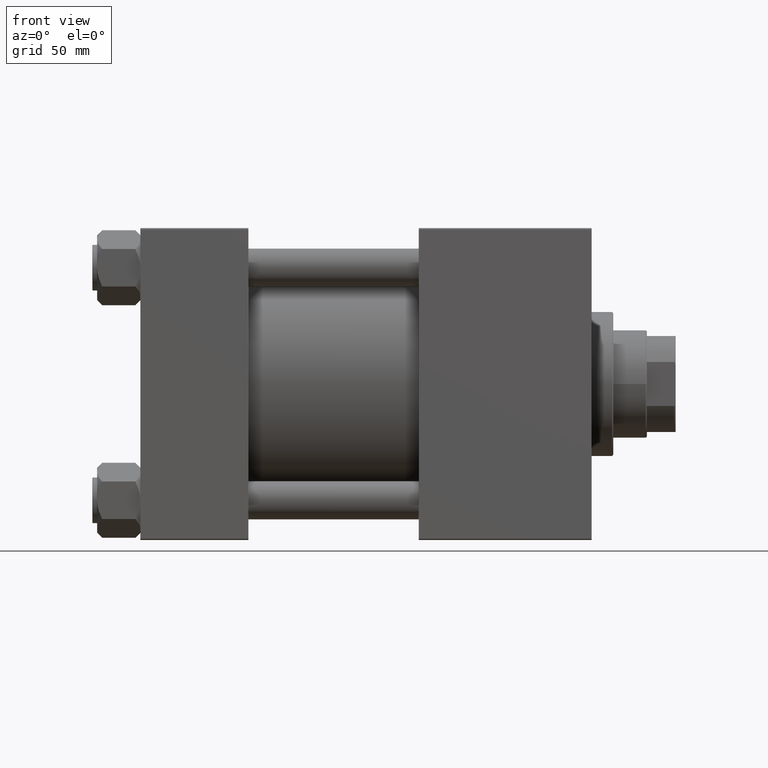
[diagram: clean part render]
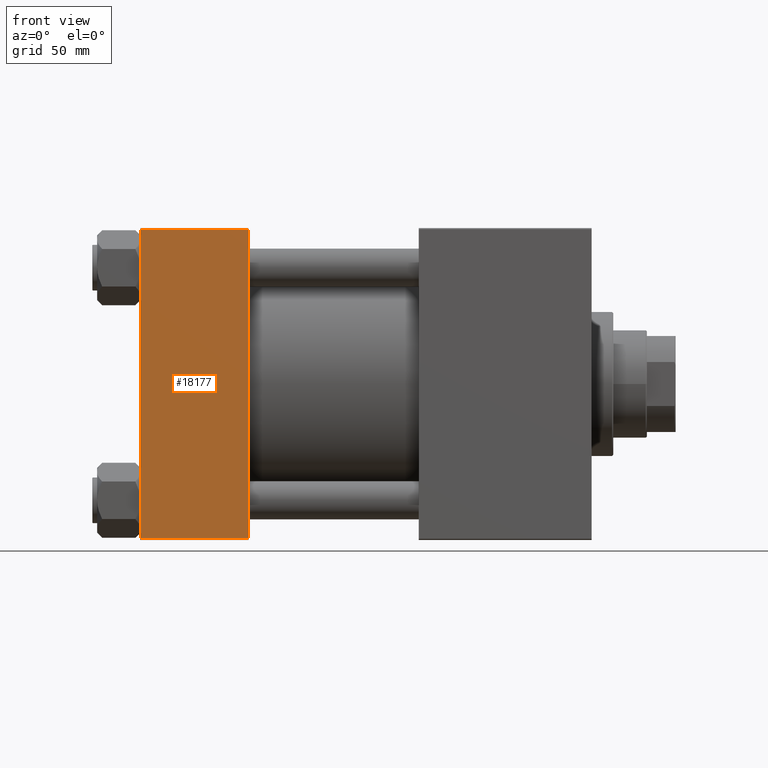
[diagram: same view with one face highlighted and labeled with its STEP entity id]
A machine part, front view. The second image highlights one B-rep face of the part: STEP entity #18177.
In plain terms, the highlighted planar face has unit normal (0, 1, 0).
Its self-contained STEP definition (entity closure, byte-faithful):
#965 = LINE ( 'NONE', #16630, #46344 ) ;
#1500 = EDGE_LOOP ( 'NONE', ( #11867, #2541, #40585, #39055 ) ) ;
#2541 = ORIENTED_EDGE ( 'NONE', *, *, #37701, .T. ) ;
#5030 = LINE ( 'NONE', #44315, #43944 ) ;
#5978 = CARTESIAN_POINT ( 'NONE',  ( 0.000000000000000000, -65.00000000000000000, 65.00000000000000000 ) ) ;
#8676 = DIRECTION ( 'NONE',  ( 1.000000000000000000, 0.000000000000000000, 0.000000000000000000 ) ) ;
#8949 = DIRECTION ( 'NONE',  ( 0.000000000000000000, 0.000000000000000000, -1.000000000000000000 ) ) ;
#10778 = DIRECTION ( 'NONE',  ( 0.000000000000000000, -0.000000000000000000, 1.000000000000000000 ) ) ;
#11031 = DIRECTION ( 'NONE',  ( -0.000000000000000000, 1.000000000000000000, 0.000000000000000000 ) ) ;
#11867 = ORIENTED_EDGE ( 'NONE', *, *, #40208, .T. ) ;
#12018 = CARTESIAN_POINT ( 'NONE',  ( 0.000000000000000000, -65.00000000000000000, 64.50000000000000000 ) ) ;
#12808 = CARTESIAN_POINT ( 'NONE',  ( 45.00000000000000000, -65.00000000000000000, 65.00000000000000000 ) ) ;
#13701 = LINE ( 'NONE', #5978, #42313 ) ;
#16630 = CARTESIAN_POINT ( 'NONE',  ( 45.00000000000000000, -65.00000000000000000, -64.49999999999991473 ) ) ;
#18177 = ADVANCED_FACE ( 'NONE', ( #33884 ), #23096, .F. ) ;
#18515 = EDGE_CURVE ( 'NONE', #19273, #18962, #21771, .T. ) ;
#18962 = VERTEX_POINT ( 'NONE', #36863 ) ;
#19273 = VERTEX_POINT ( 'NONE', #46941 ) ;
#20190 = DIRECTION ( 'NONE',  ( -1.000000000000000000, 0.000000000000000000, 0.000000000000000000 ) ) ;
#21661 = DIRECTION ( 'NONE',  ( 0.000000000000000000, 0.000000000000000000, -1.000000000000000000 ) ) ;
#21771 = LINE ( 'NONE', #12808, #23007 ) ;
#23007 = VECTOR ( 'NONE', #8949, 1000.000000000000000 ) ;
#23096 = PLANE ( 'NONE',  #31178 ) ;
#31178 = AXIS2_PLACEMENT_3D ( 'NONE', #45947, #11031, #10778 ) ;
#32851 = CARTESIAN_POINT ( 'NONE',  ( 0.000000000000000000, -65.00000000000000000, -64.49999999999991473 ) ) ;
#33884 = FACE_OUTER_BOUND ( 'NONE', #1500, .T. ) ;
#36863 = CARTESIAN_POINT ( 'NONE',  ( 45.00000000000000000, -65.00000000000000000, -64.49999999999991473 ) ) ;
#37701 = EDGE_CURVE ( 'NONE', #42085, #18962, #965, .T. ) ;
#38295 = EDGE_CURVE ( 'NONE', #19273, #43919, #5030, .T. ) ;
#39055 = ORIENTED_EDGE ( 'NONE', *, *, #38295, .T. ) ;
#40208 = EDGE_CURVE ( 'NONE', #43919, #42085, #13701, .T. ) ;
#40585 = ORIENTED_EDGE ( 'NONE', *, *, #18515, .F. ) ;
#42085 = VERTEX_POINT ( 'NONE', #32851 ) ;
#42313 = VECTOR ( 'NONE', #21661, 1000.000000000000000 ) ;
#43919 = VERTEX_POINT ( 'NONE', #12018 ) ;
#43944 = VECTOR ( 'NONE', #20190, 1000.000000000000000 ) ;
#44315 = CARTESIAN_POINT ( 'NONE',  ( 45.00000000000000000, -65.00000000000000000, 64.50000000000000000 ) ) ;
#45947 = CARTESIAN_POINT ( 'NONE',  ( 45.00000000000000000, -65.00000000000000000, 65.00000000000000000 ) ) ;
#46344 = VECTOR ( 'NONE', #8676, 1000.000000000000000 ) ;
#46941 = CARTESIAN_POINT ( 'NONE',  ( 45.00000000000000000, -65.00000000000000000, 64.50000000000000000 ) ) ;